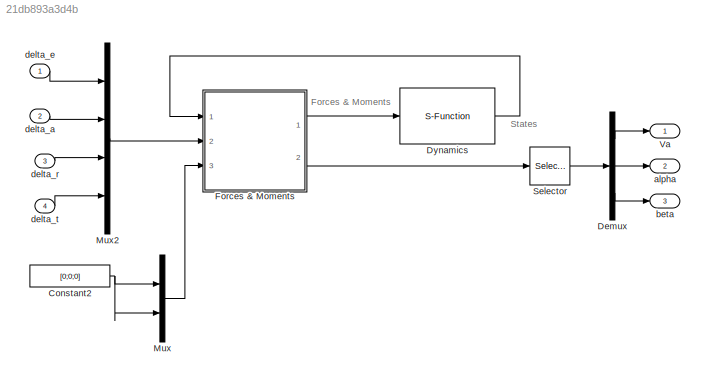
MODEL slx_21db893a3d4b
KIND model
CONFIG AbsTol = auto
CONFIG FixedStep = auto
CONFIG MaxStep = auto
CONFIG MinStep = auto
CONFIG RelTol = 1e-3
CONFIG SampleTimeConstraint = Unconstrained
CONFIG Solver = ode45
CONFIG SolverMode = Auto
CONFIG SolverName = ode45
CONFIG StartTime = 0.0
CONFIG StopTime = 10000
BLOCK [Constant] Constant2
  Value = [0;0;0]
BLOCK [Demux] Demux
  DisplayOption = bar
  Outputs = 3
  Ports = [1, 3]
BLOCK [S-Function] Dynamics
  FunctionName = mav_dynamics
  Parameters = P
  Ports = [1, 1]
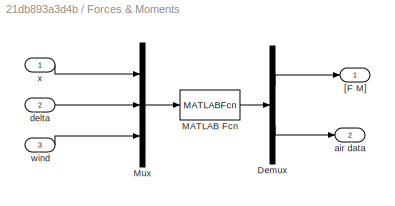
BLOCK [SubSystem] Forces & Moments
  Ports = [3, 2]
  RequestExecContextInheritance = off
BLOCK [Demux] Forces & Moments/Demux
  DisplayOption = bar
  Outputs = [6;6]
  Ports = [1, 2]
BLOCK [MATLABFcn] Forces & Moments/MATLAB Fcn
  MATLABFcn = forces_moments(u(1:12),u(13:16),u(17:22),P)
  OutputDimensions = 12
  Ports = [1, 1]
BLOCK [Mux] Forces & Moments/Mux
  DisplayOption = bar
  Inputs = 3
  Ports = [3, 1]
BLOCK [Outport] Forces & Moments/[F M]
  IconDisplay = Port number
BLOCK [Outport] Forces & Moments/air data
  IconDisplay = Port number
  Port = 2
BLOCK [Inport] Forces & Moments/delta
  IconDisplay = Port number
  Port = 2
BLOCK [Inport] Forces & Moments/wind
  IconDisplay = Port number
  Port = 3
BLOCK [Inport] Forces & Moments/x
  IconDisplay = Port number
BLOCK [Mux] Mux
  DisplayOption = bar
  Inputs = 2
  Ports = [2, 1]
BLOCK [Mux] Mux2
  DisplayOption = bar
  Ports = [4, 1]
BLOCK [Selector] Selector
  Indices = [1 2 3]
  InputPortWidth = 6
  Ports = [1, 1]
BLOCK [Outport] Va
  IconDisplay = Port number
BLOCK [Outport] alpha
  IconDisplay = Port number
  Port = 2
BLOCK [Outport] beta
  IconDisplay = Port number
  Port = 3
BLOCK [Inport] delta_a
  IconDisplay = Port number
  Port = 2
BLOCK [Inport] delta_e
  IconDisplay = Port number
BLOCK [Inport] delta_r
  IconDisplay = Port number
  Port = 3
BLOCK [Inport] delta_t
  IconDisplay = Port number
  Port = 4
ANNOTATION (root): Forces & Moments
ANNOTATION (root): States
NET Constant2:1 -> Mux:1, Mux:2
LINE Demux:1 -> Va:1
LINE Demux:2 -> alpha:1
LINE Demux:3 -> beta:1
LINE Dynamics:1 -> Forces & Moments:1
LINE Forces & Moments/Demux:1 -> Forces & Moments/[F M]:1
LINE Forces & Moments/Demux:2 -> Forces & Moments/air data:1
LINE Forces & Moments/MATLAB Fcn:1 -> Forces & Moments/Demux:1
LINE Forces & Moments/Mux:1 -> Forces & Moments/MATLAB Fcn:1
LINE Forces & Moments/delta:1 -> Forces & Moments/Mux:2
LINE Forces & Moments/wind:1 -> Forces & Moments/Mux:3
LINE Forces & Moments/x:1 -> Forces & Moments/Mux:1
LINE Forces & Moments:1 -> Dynamics:1
LINE Forces & Moments:2 -> Selector:1
LINE Mux2:1 -> Forces & Moments:2
LINE Mux:1 -> Forces & Moments:3
LINE Selector:1 -> Demux:1
LINE delta_a:1 -> Mux2:2
LINE delta_e:1 -> Mux2:1
LINE delta_r:1 -> Mux2:3
LINE delta_t:1 -> Mux2:4
note: NET lines group one-source signal fan-out (src -> all destinations, sorted); 1:1 wires keep LINE
